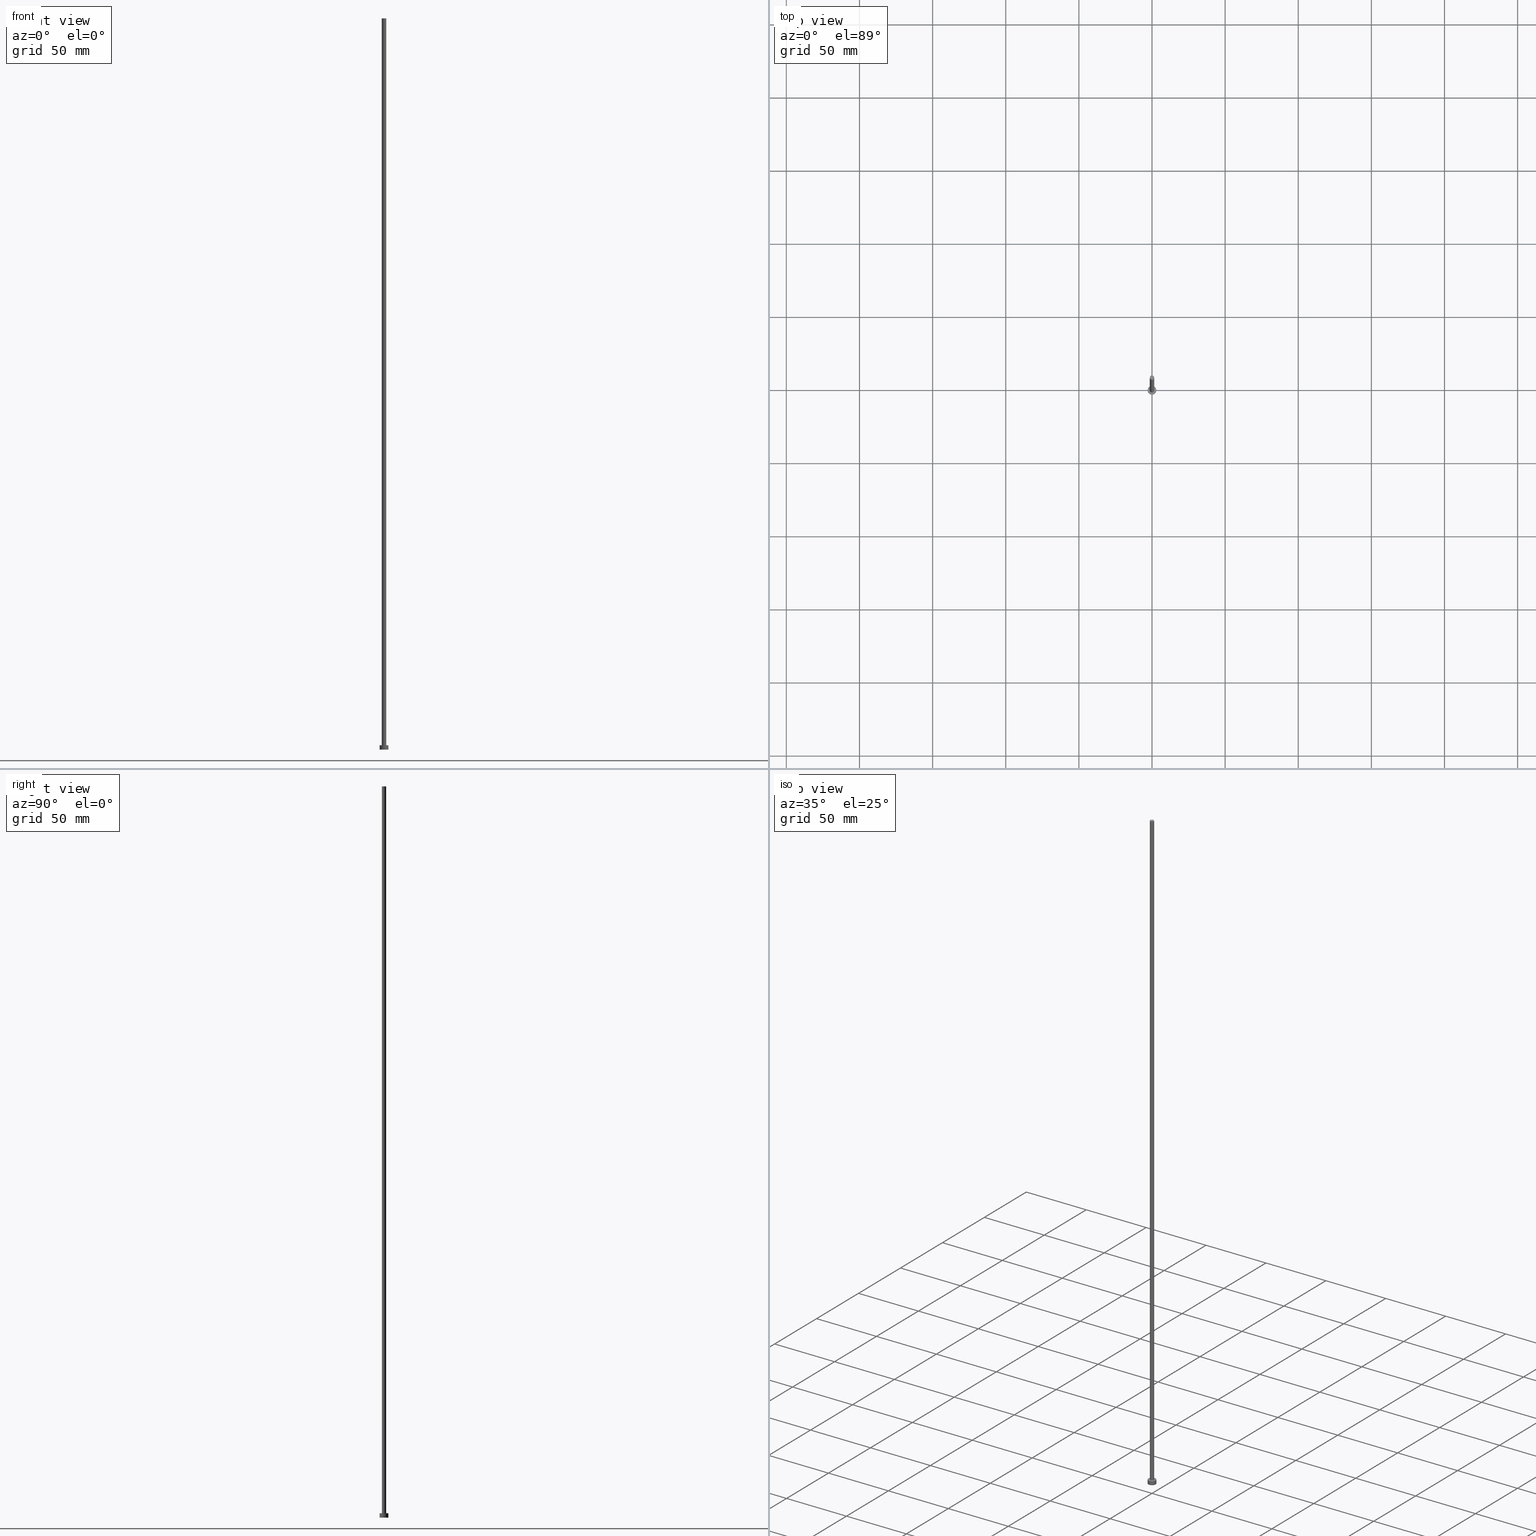
[diagram: canonical four-view strip — front | top / right | iso, engineering-drawing reading convention]
A machine part, canonical four-view strip (front | top / right | iso — engineering-drawing reading convention). The complete STEP part file that produces these views, byte-faithful:
ISO-10303-21;
HEADER;
FILE_DESCRIPTION (( 'STEP AP203' ),
    '1' );
FILE_NAME ('fa81.STEP',
    '2023-02-12T12:45:36',
    ( '' ),
    ( '' ),
    'SwSTEP 2.0',
    'SolidWorks 2019',
    '' );
FILE_SCHEMA (( 'CONFIG_CONTROL_DESIGN' ));
ENDSEC;

DATA;
#1 = EDGE_LOOP ( 'NONE', ( #59, #233 ) ) ;
#2 = AXIS2_PLACEMENT_3D ( 'NONE', #61, #142, #164 ) ;
#3 = LOCAL_TIME ( 13, 45, 36.00000000000000000, #94 ) ;
#4 = LINE ( 'NONE', #91, #53 ) ;
#5 = ORIENTED_EDGE ( 'NONE', *, *, #157, .T. ) ;
#6 = DIRECTION ( 'NONE',  ( 1.000000000000000000, 0.000000000000000000, -0.000000000000000000 ) ) ;
#7 = FACE_BOUND ( 'NONE', #194, .T. ) ;
#8 = ADVANCED_BREP_SHAPE_REPRESENTATION ( 'fa81', ( #162, #242 ), #208 ) ;
#9 = CARTESIAN_POINT ( 'NONE',  ( 0.000000000000000000, 0.000000000000000000, 3.000000000000000000 ) ) ;
#10 = EDGE_CURVE ( 'NONE', #43, #117, #84, .T. ) ;
#11 = DIRECTION ( 'NONE',  ( 0.000000000000000000, 0.000000000000000000, 1.000000000000000000 ) ) ;
#12 = CARTESIAN_POINT ( 'NONE',  ( 0.000000000000000000, 0.000000000000000000, 3.000000000000000000 ) ) ;
#13 = APPLICATION_PROTOCOL_DEFINITION ( 'international standard', 'config_control_design', 1994, #249 ) ;
#14 = PERSON_AND_ORGANIZATION_ROLE ( 'classification_officer' ) ;
#15 = DIRECTION ( 'NONE',  ( 0.000000000000000000, 0.000000000000000000, 1.000000000000000000 ) ) ;
#16 = ADVANCED_FACE ( 'NONE', ( #232 ), #227, .T. ) ;
#17 = DIRECTION ( 'NONE',  ( 1.000000000000000000, 0.000000000000000000, -0.000000000000000000 ) ) ;
#18 = AXIS2_PLACEMENT_3D ( 'NONE', #141, #85, #107 ) ;
#19 = VERTEX_POINT ( 'NONE', #101 ) ;
#20 = CIRCLE ( 'NONE', #171, 1.500000000000000222 ) ;
#21 = ORIENTED_EDGE ( 'NONE', *, *, #157, .F. ) ;
#22 = VERTEX_POINT ( 'NONE', #178 ) ;
#23 = ORIENTED_EDGE ( 'NONE', *, *, #220, .T. ) ;
#24 = APPROVAL_PERSON_ORGANIZATION ( #110, #133, #191 ) ;
#25 = EDGE_CURVE ( 'NONE', #43, #136, #4, .T. ) ;
#26 = FACE_OUTER_BOUND ( 'NONE', #75, .T. ) ;
#27 = DIRECTION ( 'NONE',  ( 0.000000000000000000, 0.000000000000000000, 1.000000000000000000 ) ) ;
#28 = CC_DESIGN_PERSON_AND_ORGANIZATION_ASSIGNMENT ( #34, #14, ( #90 ) ) ;
#29 = CARTESIAN_POINT ( 'NONE',  ( 1.500000000000000222, 1.836970198721029934E-16, 3.000000000000000000 ) ) ;
#30 = PLANE ( 'NONE',  #246 ) ;
#31 = CARTESIAN_POINT ( 'NONE',  ( 0.000000000000000000, 0.000000000000000000, 500.0000000000000000 ) ) ;
#32 = CIRCLE ( 'NONE', #236, 3.000000000000000444 ) ;
#33 = EDGE_CURVE ( 'NONE', #22, #76, #181, .T. ) ;
#34 = PERSON_AND_ORGANIZATION ( #138, #135 ) ;
#35 = PERSON_AND_ORGANIZATION ( #138, #135 ) ;
#36 = DIRECTION ( 'NONE',  ( 0.000000000000000000, 0.000000000000000000, 1.000000000000000000 ) ) ;
#37 = ADVANCED_FACE ( 'NONE', ( #244 ), #30, .T. ) ;
#38 = APPROVAL_STATUS ( 'not_yet_approved' ) ;
#39 = SHAPE_DEFINITION_REPRESENTATION ( #72, #8 ) ;
#40 = AXIS2_PLACEMENT_3D ( 'NONE', #155, #215, #80 ) ;
#41 = ORIENTED_EDGE ( 'NONE', *, *, #217, .F. ) ;
#42 = DATE_AND_TIME ( #195, #154 ) ;
#43 = VERTEX_POINT ( 'NONE', #63 ) ;
#44 = CC_DESIGN_DATE_AND_TIME_ASSIGNMENT ( #250, #149, ( #90 ) ) ;
#45 = FACE_OUTER_BOUND ( 'NONE', #156, .T. ) ;
#46 = CC_DESIGN_DATE_AND_TIME_ASSIGNMENT ( #207, #128, ( #96 ) ) ;
#47 = DIRECTION ( 'NONE',  ( 1.000000000000000000, 0.000000000000000000, 0.000000000000000000 ) ) ;
#48 = DIRECTION ( 'NONE',  ( 0.000000000000000000, 0.000000000000000000, 1.000000000000000000 ) ) ;
#49 = DIRECTION ( 'NONE',  ( 1.000000000000000000, 0.000000000000000000, 0.000000000000000000 ) ) ;
#50 = AXIS2_PLACEMENT_3D ( 'NONE', #160, #60, #49 ) ;
#51 = LINE ( 'NONE', #221, #169 ) ;
#52 = CARTESIAN_POINT ( 'NONE',  ( 0.000000000000000000, 0.000000000000000000, 0.000000000000000000 ) ) ;
#53 = VECTOR ( 'NONE', #167, 1000.000000000000000 ) ;
#54 = ORIENTED_EDGE ( 'NONE', *, *, #176, .T. ) ;
#55 = COORDINATED_UNIVERSAL_TIME_OFFSET ( 1, 0, .AHEAD. ) ;
#56 = ORIENTED_EDGE ( 'NONE', *, *, #173, .T. ) ;
#57 = ADVANCED_FACE ( 'NONE', ( #203 ), #65, .T. ) ;
#58 = ORIENTED_EDGE ( 'NONE', *, *, #25, .F. ) ;
#59 = ORIENTED_EDGE ( 'NONE', *, *, #217, .T. ) ;
#60 = DIRECTION ( 'NONE',  ( 0.000000000000000000, 0.000000000000000000, 1.000000000000000000 ) ) ;
#61 = CARTESIAN_POINT ( 'NONE',  ( 0.000000000000000000, 0.000000000000000000, 500.0000000000000000 ) ) ;
#62 = DIRECTION ( 'NONE',  ( 0.000000000000000000, 0.000000000000000000, 1.000000000000000000 ) ) ;
#63 = CARTESIAN_POINT ( 'NONE',  ( 1.500000000000000222, 1.836970198721029934E-16, 500.0000000000000000 ) ) ;
#64 = PRODUCT_RELATED_PRODUCT_CATEGORY ( 'detail', '', ( #231 ) ) ;
#65 = CYLINDRICAL_SURFACE ( 'NONE', #251, 3.000000000000000444 ) ;
#66 = APPROVAL_DATE_TIME ( #209, #182 ) ;
#67 = MECHANICAL_CONTEXT ( 'NONE', #81, 'mechanical' ) ;
#68 = ADVANCED_FACE ( 'NONE', ( #26 ), #145, .T. ) ;
#69 = PERSON_AND_ORGANIZATION_ROLE ( 'creator' ) ;
#70 = APPLICATION_PROTOCOL_DEFINITION ( 'international standard', 'config_control_design', 1994, #81 ) ;
#71 = PERSON_AND_ORGANIZATION_ROLE ( 'design_owner' ) ;
#72 = PRODUCT_DEFINITION_SHAPE ( 'NONE', 'NONE',  #96 ) ;
#73 = APPROVAL_DATE_TIME ( #42, #79 ) ;
#74 = EDGE_CURVE ( 'NONE', #117, #19, #51, .T. ) ;
#75 = EDGE_LOOP ( 'NONE', ( #175, #211, #153, #228 ) ) ;
#76 = VERTEX_POINT ( 'NONE', #198 ) ;
#77 = ORIENTED_EDGE ( 'NONE', *, *, #33, .T. ) ;
#78 = CC_DESIGN_APPROVAL ( #79, ( #90 ) ) ;
#79 = APPROVAL ( #253, 'NEUR�EN�' ) ;
#80 = DIRECTION ( 'NONE',  ( 1.000000000000000000, 0.000000000000000000, 0.000000000000000000 ) ) ;
#81 = APPLICATION_CONTEXT ( 'configuration controlled 3d designs of mechanical parts and assemblies' ) ;
#82 = APPROVAL_ROLE ( '' ) ;
#83 = EDGE_LOOP ( 'NONE', ( #23, #180 ) ) ;
#84 = CIRCLE ( 'NONE', #40, 1.500000000000000222 ) ;
#85 = DIRECTION ( 'NONE',  ( 0.000000000000000000, 0.000000000000000000, 1.000000000000000000 ) ) ;
#86 = FACE_OUTER_BOUND ( 'NONE', #83, .T. ) ;
#87 = CARTESIAN_POINT ( 'NONE',  ( 0.000000000000000000, 0.000000000000000000, 3.000000000000000000 ) ) ;
#88 = DIRECTION ( 'NONE',  ( 1.000000000000000000, 0.000000000000000000, 0.000000000000000000 ) ) ;
#89 = AXIS2_PLACEMENT_3D ( 'NONE', #87, #218, #238 ) ;
#90 = SECURITY_CLASSIFICATION ( '', '', #146 ) ;
#91 = CARTESIAN_POINT ( 'NONE',  ( 1.500000000000000222, 1.836970198721029934E-16, 500.0000000000000000 ) ) ;
#92 = PERSON_AND_ORGANIZATION ( #138, #135 ) ;
#93 = LOCAL_TIME ( 13, 45, 36.00000000000000000, #170 ) ;
#94 = COORDINATED_UNIVERSAL_TIME_OFFSET ( 1, 0, .AHEAD. ) ;
#95 = PERSON_AND_ORGANIZATION ( #138, #135 ) ;
#96 = PRODUCT_DEFINITION ( 'NEZN�M�', '', #124, #114 ) ;
#97 = APPROVAL_PERSON_ORGANIZATION ( #230, #79, #82 ) ;
#98 = ORIENTED_EDGE ( 'NONE', *, *, #74, .T. ) ;
#99 = EDGE_LOOP ( 'NONE', ( #214, #254, #77, #121 ) ) ;
#100 = VECTOR ( 'NONE', #216, 1000.000000000000000 ) ;
#101 = CARTESIAN_POINT ( 'NONE',  ( -1.500000000000000222, 0.000000000000000000, 3.000000000000000000 ) ) ;
#102 = ORIENTED_EDGE ( 'NONE', *, *, #179, .F. ) ;
#103 = CARTESIAN_POINT ( 'NONE',  ( -1.500000000000000222, 0.000000000000000000, 500.0000000000000000 ) ) ;
#104 = CARTESIAN_POINT ( 'NONE',  ( 0.000000000000000000, 0.000000000000000000, 3.000000000000000000 ) ) ;
#105 = CARTESIAN_POINT ( 'NONE',  ( 3.000000000000000444, 3.673940397442060361E-16, 3.000000000000000000 ) ) ;
#106 = DIRECTION ( 'NONE',  ( -0.000000000000000000, -0.000000000000000000, -1.000000000000000000 ) ) ;
#107 = DIRECTION ( 'NONE',  ( 1.000000000000000000, 0.000000000000000000, 0.000000000000000000 ) ) ;
#108 = CALENDAR_DATE ( 2023, 12, 2 ) ;
#109 = FACE_OUTER_BOUND ( 'NONE', #115, .T. ) ;
#110 = PERSON_AND_ORGANIZATION ( #138, #135 ) ;
#111 = AXIS2_PLACEMENT_3D ( 'NONE', #104, #199, #184 ) ;
#112 = CALENDAR_DATE ( 2023, 12, 2 ) ;
#113 = COORDINATED_UNIVERSAL_TIME_OFFSET ( 1, 0, .AHEAD. ) ;
#114 = DESIGN_CONTEXT ( 'detailed design', #249, 'design' ) ;
#115 = EDGE_LOOP ( 'NONE', ( #158, #21 ) ) ;
#116 = CC_DESIGN_PERSON_AND_ORGANIZATION_ASSIGNMENT ( #252, #69, ( #124 ) ) ;
#117 = VERTEX_POINT ( 'NONE', #103 ) ;
#118 = DIRECTION ( 'NONE',  ( -0.000000000000000000, -0.000000000000000000, -1.000000000000000000 ) ) ;
#119 = AXIS2_PLACEMENT_3D ( 'NONE', #137, #118, #212 ) ;
#120 = VERTEX_POINT ( 'NONE', #200 ) ;
#121 = ORIENTED_EDGE ( 'NONE', *, *, #147, .T. ) ;
#122 = CYLINDRICAL_SURFACE ( 'NONE', #111, 3.000000000000000444 ) ;
#123 = CARTESIAN_POINT ( 'NONE',  ( 3.000000000000000444, 3.673940397442060361E-16, 3.000000000000000000 ) ) ;
#124 = PRODUCT_DEFINITION_FORMATION_WITH_SPECIFIED_SOURCE ( 'LIBOVOLN�', '', #231, .NOT_KNOWN. ) ;
#125 = DIRECTION ( 'NONE',  ( 0.000000000000000000, 0.000000000000000000, 1.000000000000000000 ) ) ;
#126 = CARTESIAN_POINT ( 'NONE',  ( 0.000000000000000000, 0.000000000000000000, 0.000000000000000000 ) ) ;
#127 = CIRCLE ( 'NONE', #18, 3.000000000000000444 ) ;
#128 = DATE_TIME_ROLE ( 'creation_date' ) ;
#129 = APPROVAL_ROLE ( '' ) ;
#130 =( NAMED_UNIT ( * ) PLANE_ANGLE_UNIT ( ) SI_UNIT ( $, .RADIAN. ) );
#131 = LOCAL_TIME ( 13, 45, 36.00000000000000000, #223 ) ;
#132 = PLANE ( 'NONE',  #161 ) ;
#133 = APPROVAL ( #38, 'NEUR�EN�' ) ;
#134 = CC_DESIGN_PERSON_AND_ORGANIZATION_ASSIGNMENT ( #95, #187, ( #96 ) ) ;
#135 = ORGANIZATION ( 'NEUR�EN�', 'NEUR�EN�', '' ) ;
#136 = VERTEX_POINT ( 'NONE', #29 ) ;
#137 = CARTESIAN_POINT ( 'NONE',  ( 0.000000000000000000, 0.000000000000000000, 500.0000000000000000 ) ) ;
#138 = PERSON ( 'NEUR�EN�', 'NEUR�EN�', 'NEUR�EN�', ('NEUR�EN�'), ('NEUR�EN�'), ('NEUR�EN�') ) ;
#139 = VERTEX_POINT ( 'NONE', #105 ) ;
#140 = CC_DESIGN_PERSON_AND_ORGANIZATION_ASSIGNMENT ( #168, #245, ( #124 ) ) ;
#141 = CARTESIAN_POINT ( 'NONE',  ( 0.000000000000000000, 0.000000000000000000, 0.000000000000000000 ) ) ;
#142 = DIRECTION ( 'NONE',  ( 0.000000000000000000, 0.000000000000000000, 1.000000000000000000 ) ) ;
#143 = DIRECTION ( 'NONE',  ( 1.000000000000000000, 0.000000000000000000, 0.000000000000000000 ) ) ;
#144 = DIRECTION ( 'NONE',  ( -0.000000000000000000, -0.000000000000000000, -1.000000000000000000 ) ) ;
#145 = CYLINDRICAL_SURFACE ( 'NONE', #213, 1.500000000000000222 ) ;
#146 = SECURITY_CLASSIFICATION_LEVEL ( 'unclassified' ) ;
#147 = EDGE_CURVE ( 'NONE', #76, #120, #204, .T. ) ;
#148 =( NAMED_UNIT ( * ) SI_UNIT ( $, .STERADIAN. ) SOLID_ANGLE_UNIT ( ) );
#149 = DATE_TIME_ROLE ( 'classification_date' ) ;
#150 = VECTOR ( 'NONE', #222, 1000.000000000000000 ) ;
#151 = AXIS2_PLACEMENT_3D ( 'NONE', #12, #48, #88 ) ;
#152 =( LENGTH_UNIT ( ) NAMED_UNIT ( * ) SI_UNIT ( .MILLI., .METRE. ) );
#153 = ORIENTED_EDGE ( 'NONE', *, *, #224, .T. ) ;
#154 = LOCAL_TIME ( 13, 45, 36.00000000000000000, #55 ) ;
#155 = CARTESIAN_POINT ( 'NONE',  ( 0.000000000000000000, 0.000000000000000000, 500.0000000000000000 ) ) ;
#156 = EDGE_LOOP ( 'NONE', ( #102, #54, #5, #197 ) ) ;
#157 = EDGE_CURVE ( 'NONE', #120, #76, #127, .T. ) ;
#158 = ORIENTED_EDGE ( 'NONE', *, *, #147, .F. ) ;
#159 = CIRCLE ( 'NONE', #50, 1.500000000000000222 ) ;
#160 = CARTESIAN_POINT ( 'NONE',  ( 0.000000000000000000, 0.000000000000000000, 3.000000000000000000 ) ) ;
#161 = AXIS2_PLACEMENT_3D ( 'NONE', #52, #15, #17 ) ;
#162 = MANIFOLD_SOLID_BREP ( 'P�idat vysunut�m3', #240 ) ;
#163 = PLANE ( 'NONE',  #89 ) ;
#164 = DIRECTION ( 'NONE',  ( 1.000000000000000000, 0.000000000000000000, 0.000000000000000000 ) ) ;
#165 = CARTESIAN_POINT ( 'NONE',  ( 0.000000000000000000, 0.000000000000000000, 500.0000000000000000 ) ) ;
#166 = LOCAL_TIME ( 13, 45, 36.00000000000000000, #113 ) ;
#167 = DIRECTION ( 'NONE',  ( -0.000000000000000000, -0.000000000000000000, -1.000000000000000000 ) ) ;
#168 = PERSON_AND_ORGANIZATION ( #138, #135 ) ;
#169 = VECTOR ( 'NONE', #185, 1000.000000000000000 ) ;
#170 = COORDINATED_UNIVERSAL_TIME_OFFSET ( 1, 0, .AHEAD. ) ;
#171 = AXIS2_PLACEMENT_3D ( 'NONE', #219, #125, #202 ) ;
#172 = CALENDAR_DATE ( 2023, 12, 2 ) ;
#173 = EDGE_CURVE ( 'NONE', #19, #136, #159, .T. ) ;
#174 = DATE_AND_TIME ( #192, #166 ) ;
#175 = ORIENTED_EDGE ( 'NONE', *, *, #10, .F. ) ;
#176 = EDGE_CURVE ( 'NONE', #139, #120, #186, .T. ) ;
#177 = EDGE_LOOP ( 'NONE', ( #58, #41, #98, #56 ) ) ;
#178 = CARTESIAN_POINT ( 'NONE',  ( -3.000000000000000444, 0.000000000000000000, 3.000000000000000000 ) ) ;
#179 = EDGE_CURVE ( 'NONE', #139, #22, #190, .T. ) ;
#180 = ORIENTED_EDGE ( 'NONE', *, *, #179, .T. ) ;
#181 = LINE ( 'NONE', #241, #150 ) ;
#182 = APPROVAL ( #205, 'NEUR�EN�' ) ;
#183 = DIRECTION ( 'NONE',  ( -1.000000000000000000, 0.000000000000000000, 0.000000000000000000 ) ) ;
#184 = DIRECTION ( 'NONE',  ( -1.000000000000000000, 0.000000000000000000, 0.000000000000000000 ) ) ;
#185 = DIRECTION ( 'NONE',  ( -0.000000000000000000, -0.000000000000000000, -1.000000000000000000 ) ) ;
#186 = LINE ( 'NONE', #123, #100 ) ;
#187 = PERSON_AND_ORGANIZATION_ROLE ( 'creator' ) ;
#188 = DIRECTION ( 'NONE',  ( 1.000000000000000000, 0.000000000000000000, 0.000000000000000000 ) ) ;
#189 = CARTESIAN_POINT ( 'NONE',  ( 0.000000000000000000, 0.000000000000000000, 0.000000000000000000 ) ) ;
#190 = CIRCLE ( 'NONE', #151, 3.000000000000000444 ) ;
#191 = APPROVAL_ROLE ( '' ) ;
#192 = CALENDAR_DATE ( 2023, 12, 2 ) ;
#193 = ADVANCED_FACE ( 'NONE', ( #45 ), #122, .T. ) ;
#194 = EDGE_LOOP ( 'NONE', ( #235, #196 ) ) ;
#195 = CALENDAR_DATE ( 2023, 12, 2 ) ;
#196 = ORIENTED_EDGE ( 'NONE', *, *, #224, .F. ) ;
#197 = ORIENTED_EDGE ( 'NONE', *, *, #33, .F. ) ;
#198 = CARTESIAN_POINT ( 'NONE',  ( -3.000000000000000444, 0.000000000000000000, 0.000000000000000000 ) ) ;
#199 = DIRECTION ( 'NONE',  ( -0.000000000000000000, -0.000000000000000000, -1.000000000000000000 ) ) ;
#200 = CARTESIAN_POINT ( 'NONE',  ( 3.000000000000000444, 3.673940397442060361E-16, 0.000000000000000000 ) ) ;
#201 = APPROVAL_PERSON_ORGANIZATION ( #35, #182, #129 ) ;
#202 = DIRECTION ( 'NONE',  ( 1.000000000000000000, 0.000000000000000000, 0.000000000000000000 ) ) ;
#203 = FACE_OUTER_BOUND ( 'NONE', #99, .T. ) ;
#204 = CIRCLE ( 'NONE', #234, 3.000000000000000444 ) ;
#205 = APPROVAL_STATUS ( 'not_yet_approved' ) ;
#206 = ADVANCED_FACE ( 'NONE', ( #7, #86 ), #163, .T. ) ;
#207 = DATE_AND_TIME ( #112, #93 ) ;
#208 =( GEOMETRIC_REPRESENTATION_CONTEXT ( 3 ) GLOBAL_UNCERTAINTY_ASSIGNED_CONTEXT ( ( #210 ) ) GLOBAL_UNIT_ASSIGNED_CONTEXT ( ( #152, #130, #148 ) ) REPRESENTATION_CONTEXT ( 'NONE', 'WORKASPACE' ) );
#209 = DATE_AND_TIME ( #108, #131 ) ;
#210 = UNCERTAINTY_MEASURE_WITH_UNIT (LENGTH_MEASURE( 1.000000000000000082E-05 ), #152, 'distance_accuracy_value', 'NONE');
#211 = ORIENTED_EDGE ( 'NONE', *, *, #25, .T. ) ;
#212 = DIRECTION ( 'NONE',  ( -1.000000000000000000, 0.000000000000000000, 0.000000000000000000 ) ) ;
#213 = AXIS2_PLACEMENT_3D ( 'NONE', #31, #144, #237 ) ;
#214 = ORIENTED_EDGE ( 'NONE', *, *, #176, .F. ) ;
#215 = DIRECTION ( 'NONE',  ( 0.000000000000000000, 0.000000000000000000, 1.000000000000000000 ) ) ;
#216 = DIRECTION ( 'NONE',  ( -0.000000000000000000, -0.000000000000000000, -1.000000000000000000 ) ) ;
#217 = EDGE_CURVE ( 'NONE', #117, #43, #248, .T. ) ;
#218 = DIRECTION ( 'NONE',  ( 0.000000000000000000, 0.000000000000000000, 1.000000000000000000 ) ) ;
#219 = CARTESIAN_POINT ( 'NONE',  ( 0.000000000000000000, 0.000000000000000000, 3.000000000000000000 ) ) ;
#220 = EDGE_CURVE ( 'NONE', #22, #139, #32, .T. ) ;
#221 = CARTESIAN_POINT ( 'NONE',  ( -1.500000000000000222, 0.000000000000000000, 500.0000000000000000 ) ) ;
#222 = DIRECTION ( 'NONE',  ( -0.000000000000000000, -0.000000000000000000, -1.000000000000000000 ) ) ;
#223 = COORDINATED_UNIVERSAL_TIME_OFFSET ( 1, 0, .AHEAD. ) ;
#224 = EDGE_CURVE ( 'NONE', #136, #19, #20, .T. ) ;
#225 = CC_DESIGN_APPROVAL ( #133, ( #124 ) ) ;
#226 = ADVANCED_FACE ( 'NONE', ( #109 ), #132, .F. ) ;
#227 = CYLINDRICAL_SURFACE ( 'NONE', #119, 1.500000000000000222 ) ;
#228 = ORIENTED_EDGE ( 'NONE', *, *, #74, .F. ) ;
#229 = CC_DESIGN_APPROVAL ( #182, ( #96 ) ) ;
#230 = PERSON_AND_ORGANIZATION ( #138, #135 ) ;
#231 = PRODUCT ( 'fa81', 'fa81', '', ( #67 ) ) ;
#232 = FACE_OUTER_BOUND ( 'NONE', #177, .T. ) ;
#233 = ORIENTED_EDGE ( 'NONE', *, *, #10, .T. ) ;
#234 = AXIS2_PLACEMENT_3D ( 'NONE', #126, #11, #47 ) ;
#235 = ORIENTED_EDGE ( 'NONE', *, *, #173, .F. ) ;
#236 = AXIS2_PLACEMENT_3D ( 'NONE', #239, #62, #143 ) ;
#237 = DIRECTION ( 'NONE',  ( -1.000000000000000000, 0.000000000000000000, 0.000000000000000000 ) ) ;
#238 = DIRECTION ( 'NONE',  ( 1.000000000000000000, 0.000000000000000000, -0.000000000000000000 ) ) ;
#239 = CARTESIAN_POINT ( 'NONE',  ( 0.000000000000000000, 0.000000000000000000, 3.000000000000000000 ) ) ;
#240 = CLOSED_SHELL ( 'NONE', ( #68, #193, #57, #206, #226, #16, #37 ) ) ;
#241 = CARTESIAN_POINT ( 'NONE',  ( -3.000000000000000444, 0.000000000000000000, 3.000000000000000000 ) ) ;
#242 = AXIS2_PLACEMENT_3D ( 'NONE', #189, #36, #188 ) ;
#243 = CC_DESIGN_SECURITY_CLASSIFICATION ( #90, ( #124 ) ) ;
#244 = FACE_OUTER_BOUND ( 'NONE', #1, .T. ) ;
#245 = PERSON_AND_ORGANIZATION_ROLE ( 'design_supplier' ) ;
#246 = AXIS2_PLACEMENT_3D ( 'NONE', #165, #27, #6 ) ;
#247 = APPROVAL_DATE_TIME ( #174, #133 ) ;
#248 = CIRCLE ( 'NONE', #2, 1.500000000000000222 ) ;
#249 = APPLICATION_CONTEXT ( 'configuration controlled 3d designs of mechanical parts and assemblies' ) ;
#250 = DATE_AND_TIME ( #172, #3 ) ;
#251 = AXIS2_PLACEMENT_3D ( 'NONE', #9, #106, #183 ) ;
#252 = PERSON_AND_ORGANIZATION ( #138, #135 ) ;
#253 = APPROVAL_STATUS ( 'not_yet_approved' ) ;
#254 = ORIENTED_EDGE ( 'NONE', *, *, #220, .F. ) ;
#255 = CC_DESIGN_PERSON_AND_ORGANIZATION_ASSIGNMENT ( #92, #71, ( #231 ) ) ;
ENDSEC;
END-ISO-10303-21;
